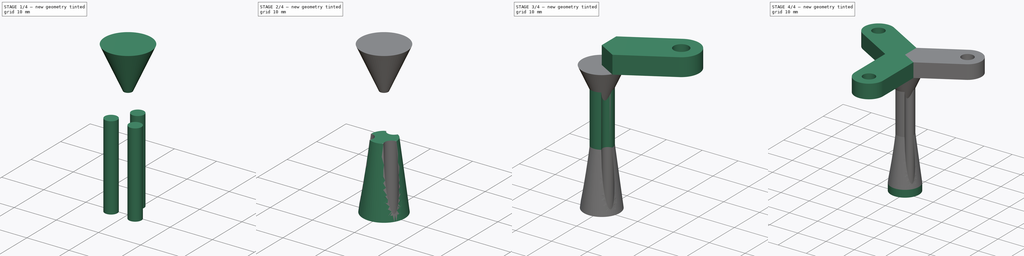
[diagram: build sequence overview — one tinted view per stage of 4, left to right]
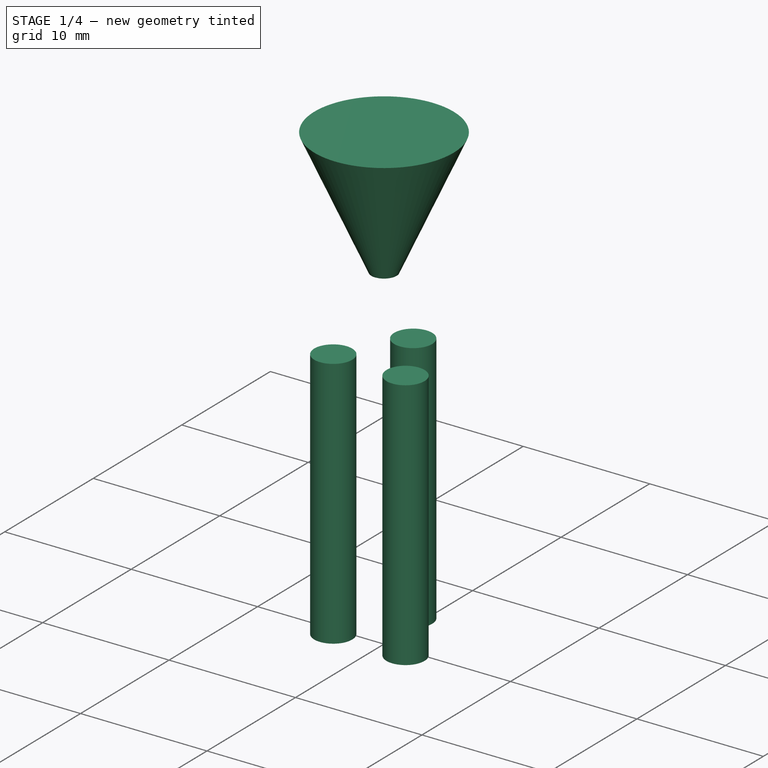
[diagram: stage 1 of 4 — iso view after this stage's code; geometry added in this stage tinted green]
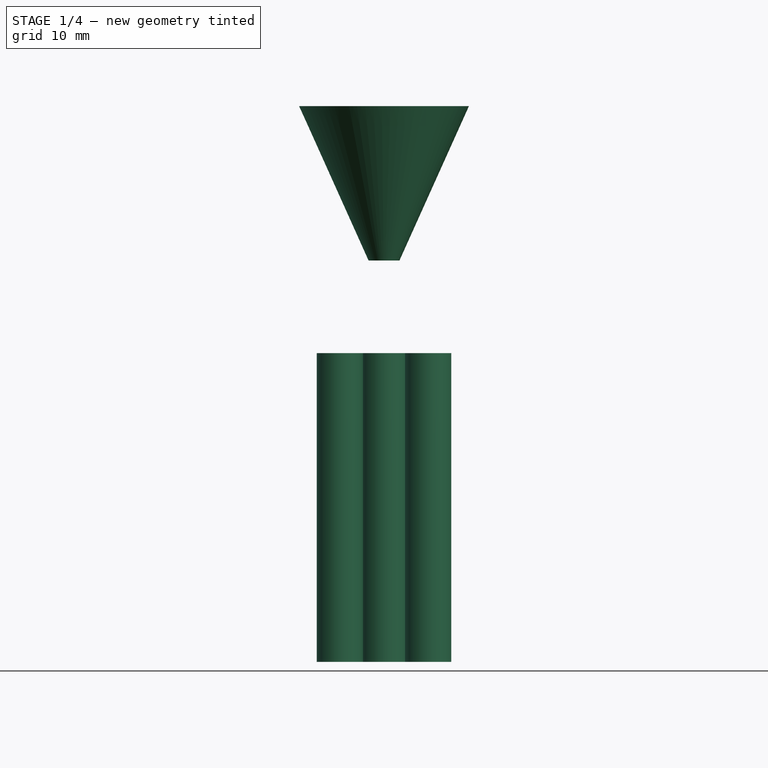
[diagram: stage 1 of 4 — front view after this stage's code; geometry added in this stage tinted green]
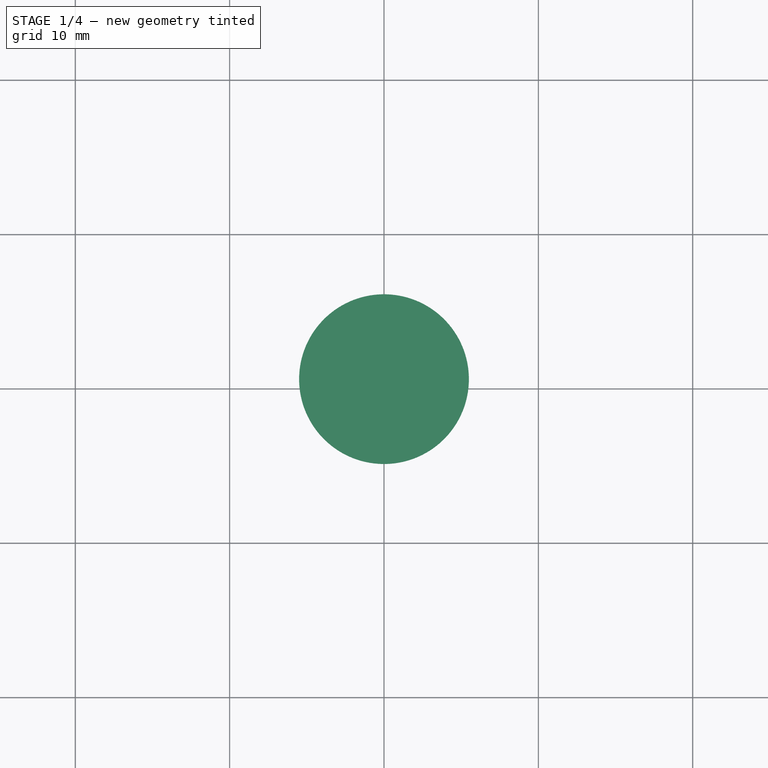
[diagram: stage 1 of 4 — top view after this stage's code; geometry added in this stage tinted green]
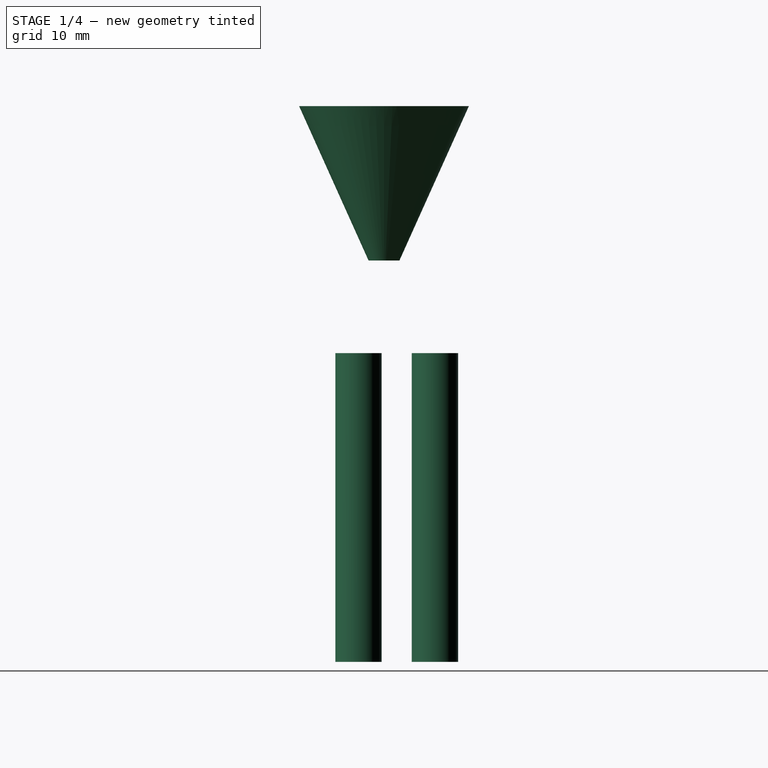
[diagram: stage 1 of 4 — right view after this stage's code; geometry added in this stage tinted green]
FCSTD DOCUMENT  (FreeCAD 0.20R29177 +426 (Git))
Label: CF2.1_BL_motor_mount_fixture
License: All rights reserved
LicenseURL: http://en.wikipedia.org/wiki/All_rights_reserved
objects: Sketcher::SketchObject×3, PartDesign::Pad×3, Part::Cone×2, PartDesign::Body×2, Part::Extrusion×1, Part::Cut×1, PartDesign::FeatureBase×1, PartDesign::PolarPattern×1
note: 17 computed .brp shape members not serialized (recipe doc carries the construction recipe); baked Part::Feature solids carry a one-line shape summary decoded from their .brp

FEATURE [Sketcher::SketchObject] Sketch005
  FullyConstrained = true
  MapMode = 5
  Placement = pos=(0,0,1) rot=(0,0,1;0rad)
  sketch-geometry (6):
    g0: Circle CenterX=0 CenterY=3.3 CenterZ=0 NormalX=0 NormalY=0 NormalZ=1 AngleXU=0 Radius=1.5
    g1: Circle CenterX=2.85788 CenterY=-1.65 CenterZ=0 NormalX=0 NormalY=0 NormalZ=1 AngleXU=0 Radius=1.5
    g2: Circle CenterX=-2.85788 CenterY=-1.65 CenterZ=0 NormalX=0 NormalY=0 NormalZ=1 AngleXU=0 Radius=1.5
    g3: Circle CenterX=0 CenterY=0 CenterZ=0 NormalX=0 NormalY=0 NormalZ=1 AngleXU=0 Radius=3.3
    g4: LineSegment StartX=0 StartY=0 StartZ=0 EndX=2.85788 EndY=-1.65 EndZ=0
    g5: LineSegment StartX=0 StartY=0 StartZ=0 EndX=-2.85788 EndY=-1.65 EndZ=0
  constraints (15):
    c: PointOnObject(g0,g-2)
    c: Coincident(g3,g-1)
    c: Coincident(g4,g3)
    c: Coincident(g4,g1)
    c: Coincident(g5,g3)
    c: Coincident(g5,g2)
    c: Radius(g3) = 3.3
    c: PointOnObject(g1,g3)
    c: PointOnObject(g2,g3)
    c: Radius(g1) = 1.5
    c: Radius(g2) = 1.5
    c: Radius(g0) = 1.5
    c: PointOnObject(g0,g3)
    c: Angle(g4) = -0.523599
    c: Angle(g5) = -2.61799
FEATURE [Part::Extrusion] Extrude
  Base = -> Sketch005
  Dir = (0,0,1)
  DirMode = 2
  FaceMakerClass = Part::FaceMakerBullseye
  LengthFwd = 20
  LengthRev = 0
  Solid = true
  Symmetric = false
FEATURE [PartDesign::Body] Body
  Group = -> [Sketch,Pad,Sketch005]
  Origin = -> Origin
  Tip = -> Pad
FEATURE [PartDesign::Body] Body001
  BaseFeature = -> Cut
  Group = -> [BaseFeature,Pad001,Sketch006,Pad002,PolarPattern]
  Origin = -> Origin001
  Tip = -> PolarPattern
FEATURE [Part::Cone] Cone001
  Angle = 360
  AttacherType = Attacher::AttachEngine3D
  Height = 10
  Placement = pos=(0,0,27) rot=(0,0,1;0rad)
  Radius1 = 1
  Radius2 = 5.5
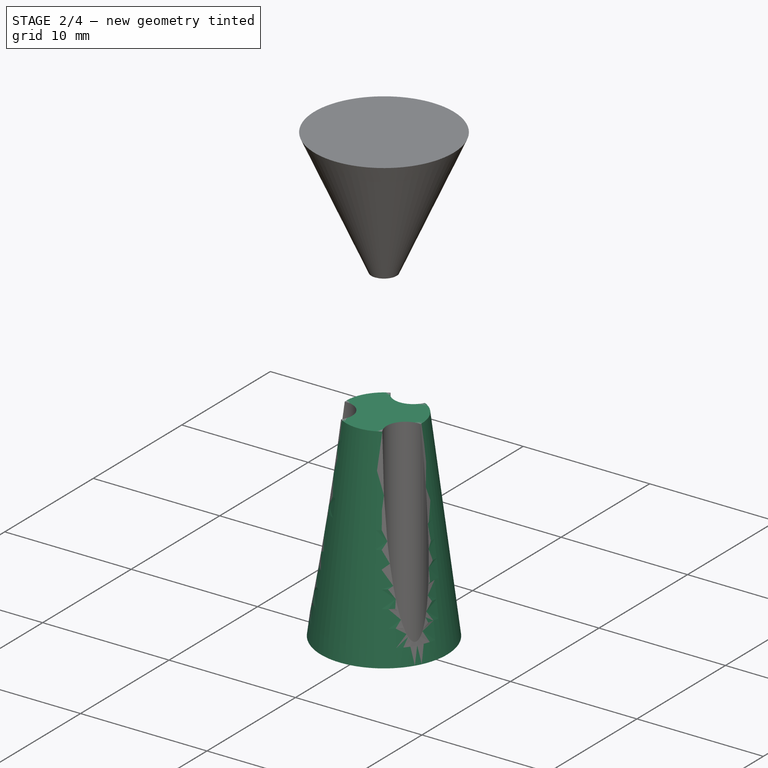
[diagram: stage 2 of 4 — iso view after this stage's code; geometry added in this stage tinted green]
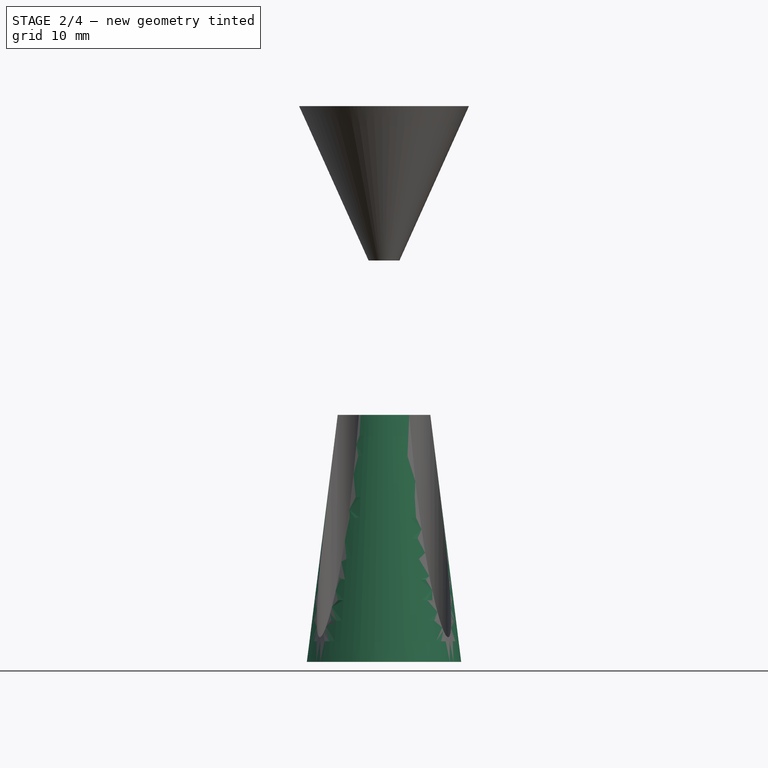
[diagram: stage 2 of 4 — front view after this stage's code; geometry added in this stage tinted green]
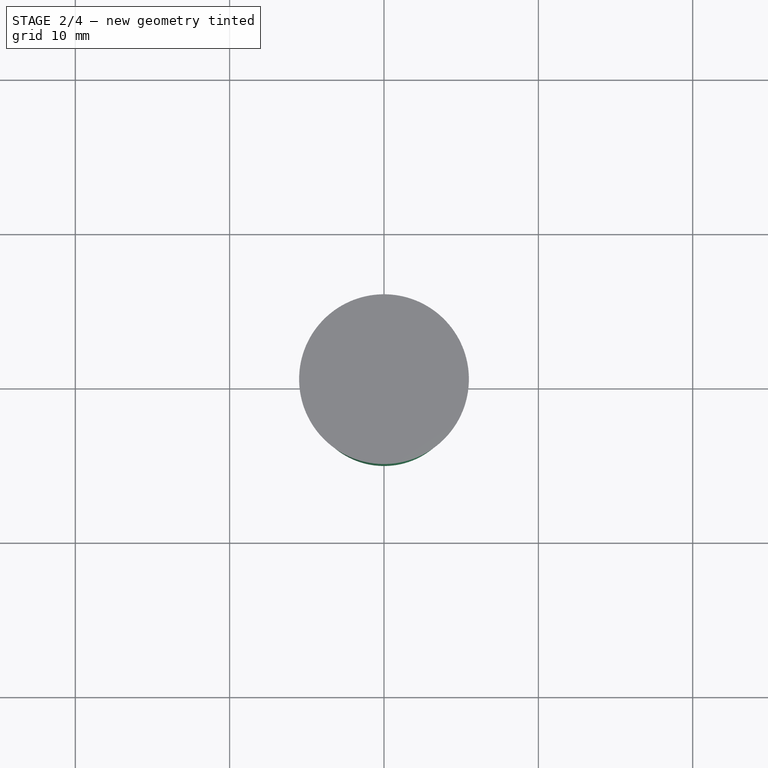
[diagram: stage 2 of 4 — top view after this stage's code; geometry added in this stage tinted green]
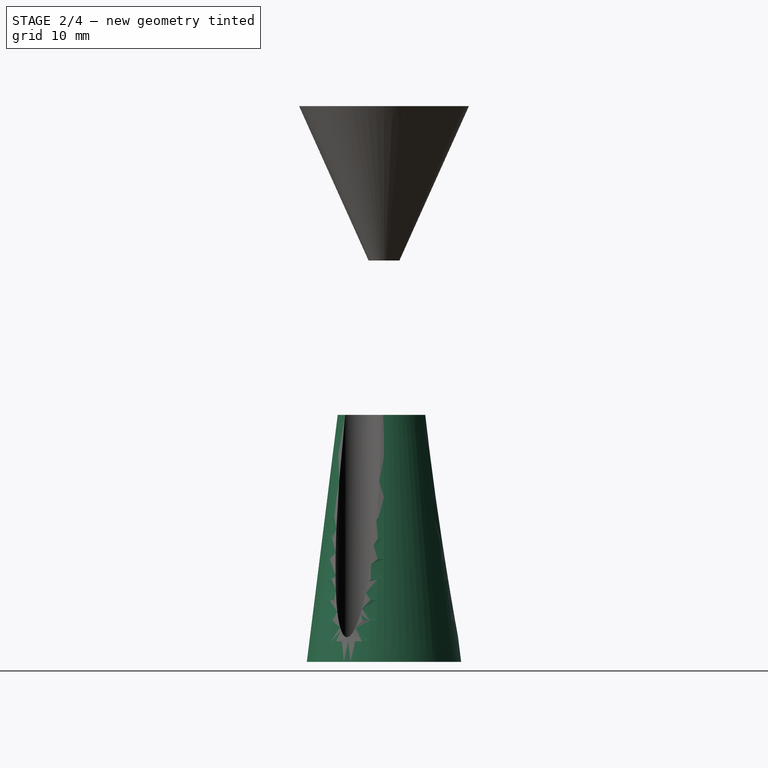
[diagram: stage 2 of 4 — right view after this stage's code; geometry added in this stage tinted green]
FEATURE [Part::Cone] Cone
  Angle = 360
  AttacherType = Attacher::AttachEngine3D
  Height = 16
  Placement = pos=(0,0,1) rot=(0,0,1;0rad)
  Radius1 = 5
  Radius2 = 3
FEATURE [Part::Cut] Cut
  Base = -> Cone
  Tool = -> Extrude
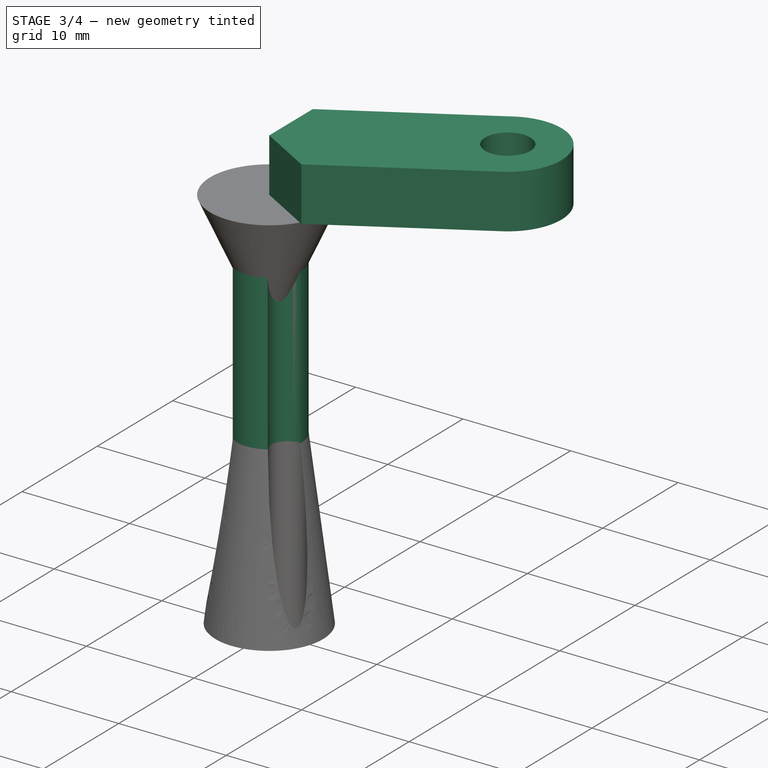
[diagram: stage 3 of 4 — iso view after this stage's code; geometry added in this stage tinted green]
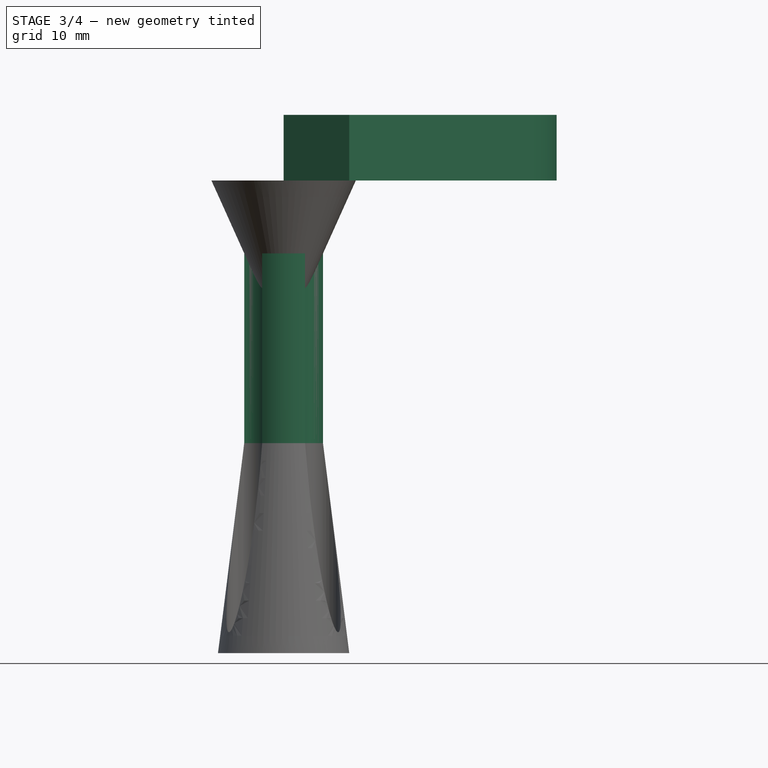
[diagram: stage 3 of 4 — front view after this stage's code; geometry added in this stage tinted green]
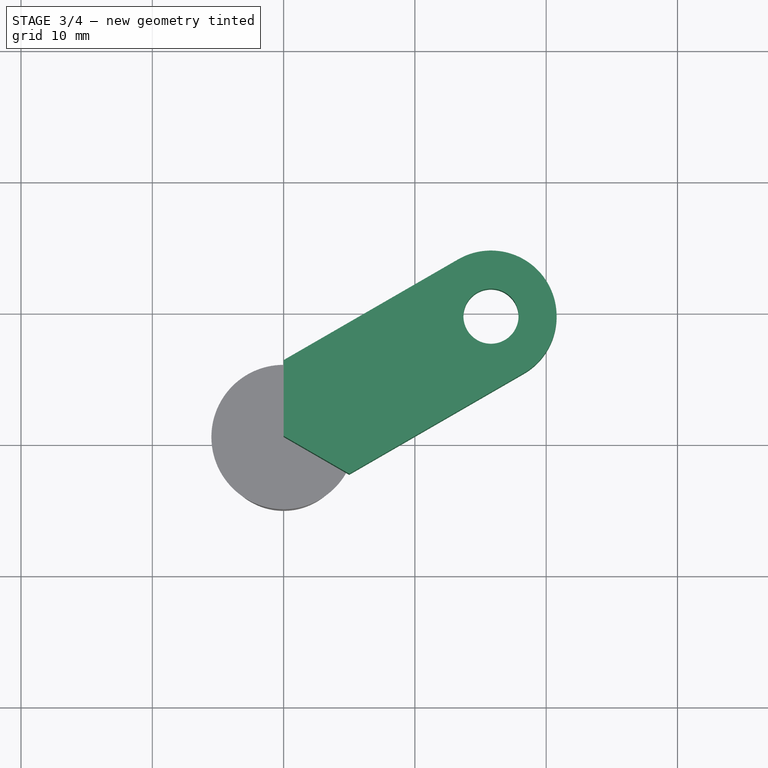
[diagram: stage 3 of 4 — top view after this stage's code; geometry added in this stage tinted green]
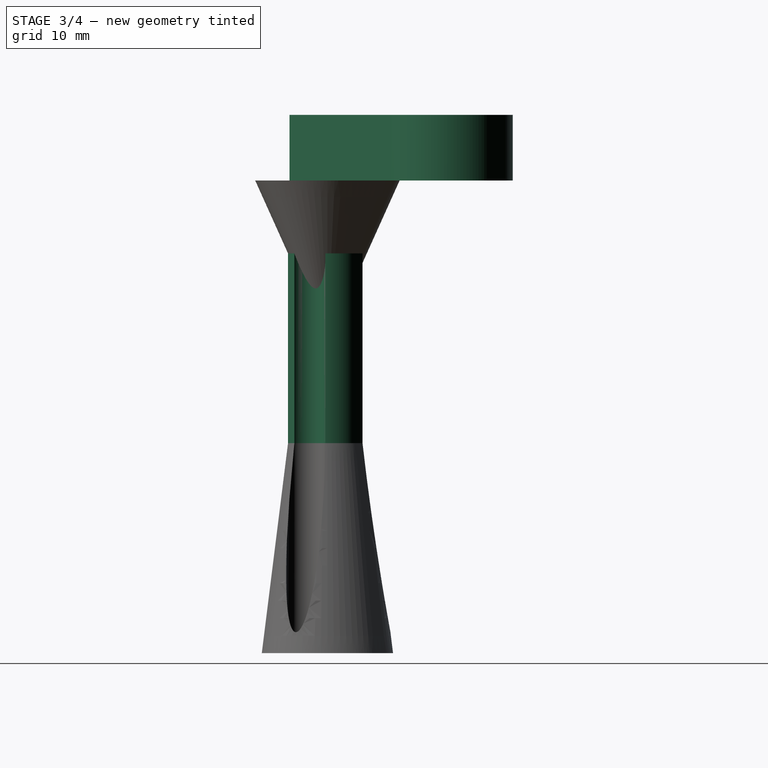
[diagram: stage 3 of 4 — right view after this stage's code; geometry added in this stage tinted green]
FEATURE [PartDesign::FeatureBase] BaseFeature
  BaseFeature = -> Cut
FEATURE [PartDesign::Pad] Pad001
  BaseFeature = -> BaseFeature
  Direction = (0,0,1)
  Length = 20
  Length2 = 10
  Profile = -> BaseFeature [Face3]
  Type = 0
FEATURE [Sketcher::SketchObject] Sketch006
  FullyConstrained = false
  MapMode = 5
  Placement = pos=(0,0,37) rot=(0,0,1;0rad)
  Support = -> [Pad001]
  sketch-geometry (8):
    g0: LineSegment StartX=0 StartY=0 StartZ=0 EndX=15.795 EndY=9.11925 EndZ=0
    g1: ArcOfCircle CenterX=15.795 CenterY=9.11925 CenterZ=0 NormalX=0 NormalY=0 NormalZ=1 AngleXU=0 Radius=5 StartAngle=5.23599 EndAngle=8.37758
    g2: LineSegment StartX=13.295 StartY=13.4494 StartZ=0 EndX=0 EndY=5.7735 EndZ=0
    g3: LineSegment StartX=18.295 StartY=4.78913 StartZ=0 EndX=5 EndY=-2.88675 EndZ=0
    g4: Circle CenterX=15.795 CenterY=9.11925 CenterZ=0 NormalX=0 NormalY=0 NormalZ=1 AngleXU=0 Radius=2.1
    g5: LineSegment StartX=0 StartY=0 StartZ=0 EndX=8.40718 EndY=-4.85389 EndZ=0
    g6: LineSegment StartX=0 StartY=5.7735 StartZ=0 EndX=0 EndY=0 EndZ=0
    g7: LineSegment StartX=5 StartY=-2.88675 StartZ=0 EndX=0 EndY=0 EndZ=0
  constraints (18):
    c: Coincident(g0,g-1)
    c: Angle(g0) = 0.523599
    c: Coincident(g1,g0)
    c: PointOnObject(g2,g-2)
    c: Parallel(g2,g3)
    c: Parallel(g3,g0)
    c: Tangent(g2,g1) = -1.5708
    c: Tangent(g3,g1) = 1.5708
    c: Coincident(g4,g1)
    c: Radius(g4) = 2.1
    c: Coincident(g5,g0)
    c: Angle(g5) = -0.523599
    c: PointOnObject(g3,g5)
    c: Radius(g1) = 5
    c: Coincident(g6,g2)
    c: Coincident(g6,g0)
    c: Coincident(g7,g3)
    c: Coincident(g7,g6)
FEATURE [PartDesign::Pad] Pad002
  BaseFeature = -> Pad001
  Direction = (0,0,1)
  Length = 5
  Length2 = 10
  Profile = -> Sketch006
  ReferenceAxis = -> Sketch006 [N_Axis]
  Type = 0
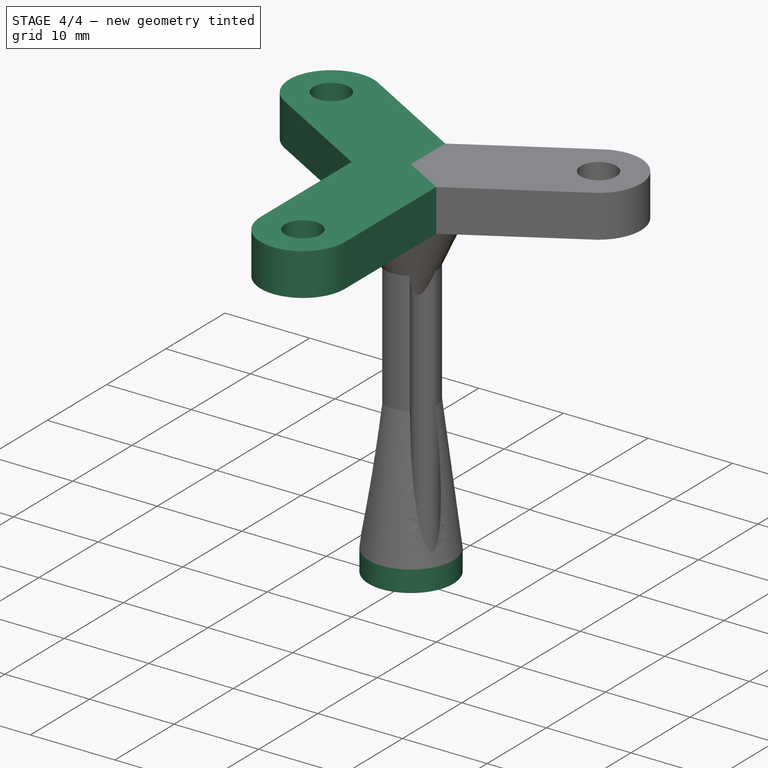
[diagram: stage 4 of 4 — iso view after this stage's code; geometry added in this stage tinted green]
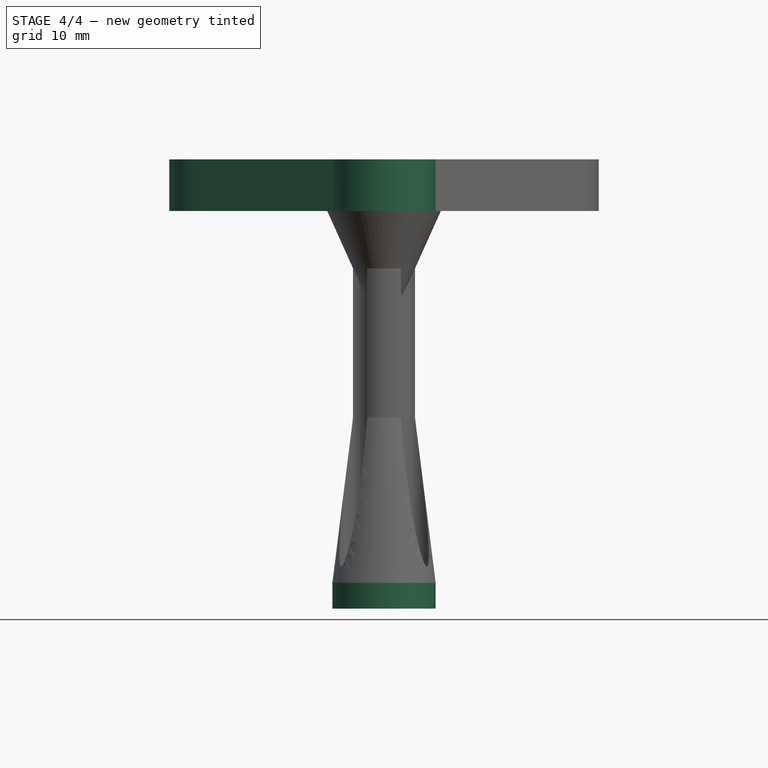
[diagram: stage 4 of 4 — front view after this stage's code; geometry added in this stage tinted green]
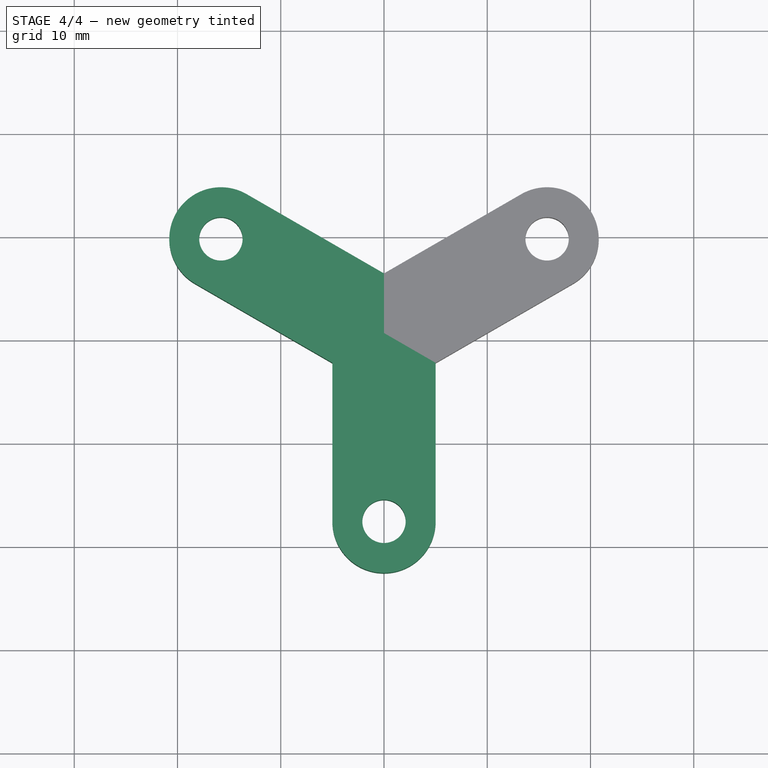
[diagram: stage 4 of 4 — top view after this stage's code; geometry added in this stage tinted green]
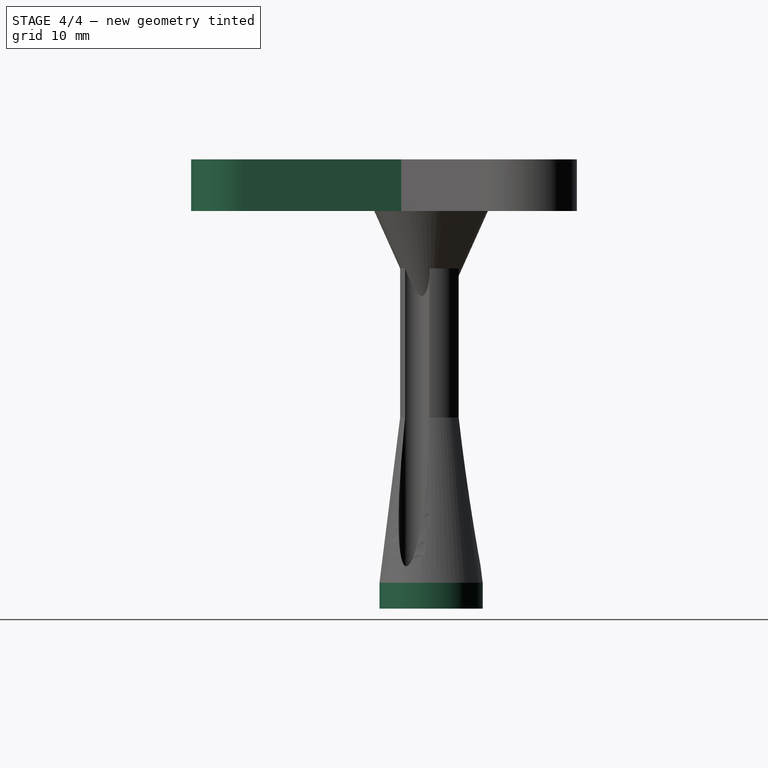
[diagram: stage 4 of 4 — right view after this stage's code; geometry added in this stage tinted green]
FEATURE [PartDesign::PolarPattern] PolarPattern
  Angle = 360
  Axis = -> Sketch006 [N_Axis]
  BaseFeature = -> Pad002
  Occurrences = 3
  Originals = -> [Pad002]
FEATURE [Sketcher::SketchObject] Sketch
  AttachmentOffset = pos=(0,0,0) rot=(0,0,1;3.14159rad)
  FullyConstrained = true
  MapMode = 5
  Placement = pos=(0,0,1) rot=(0,-1,0;3.14159rad)
  Support = -> [PolarPattern]
  sketch-geometry (8):
    g0: Circle CenterX=0 CenterY=0 CenterZ=0 NormalX=0 NormalY=0 NormalZ=1 AngleXU=0 Radius=5
    g1: Circle CenterX=0 CenterY=3.3 CenterZ=0 NormalX=0 NormalY=0 NormalZ=1 AngleXU=0 Radius=0.85
    g2: Circle CenterX=2.85788 CenterY=-1.65 CenterZ=0 NormalX=0 NormalY=0 NormalZ=1 AngleXU=0 Radius=0.85
    g3: Circle CenterX=-2.85788 CenterY=-1.65 CenterZ=0 NormalX=0 NormalY=0 NormalZ=1 AngleXU=0 Radius=0.85
    g4: Circle CenterX=0 CenterY=0 CenterZ=0 NormalX=0 NormalY=0 NormalZ=1 AngleXU=0 Radius=3.3
    g5: LineSegment StartX=0 StartY=0 StartZ=0 EndX=4.33013 EndY=-2.5 EndZ=0
    g6: LineSegment StartX=0 StartY=0 StartZ=0 EndX=-4.33013 EndY=-2.5 EndZ=0
    g7: Circle CenterX=0 CenterY=0 CenterZ=0 NormalX=0 NormalY=0 NormalZ=1 AngleXU=0 Radius=2
  constraints (21):
    c: Coincident(g0,g-1)
    c: Radius(g0) = 5
    c: PointOnObject(g1,g-2)
    c: Diameter(g1) = 1.7
    c: Diameter(g2) = 1.7
    c: Diameter(g3) = 1.7
    c: Coincident(g4,g0)
    c: Radius(g4) = 3.3
    c: Coincident(g5,g0)
    c: PointOnObject(g5,g0)
    c: Coincident(g6,g0)
    c: PointOnObject(g6,g0)
    c: Angle(g5) = -0.523599
    c: Angle(g6) = -2.61799
    c: PointOnObject(g2,g5)
    c: PointOnObject(g2,g4)
    c: PointOnObject(g3,g6)
    c: PointOnObject(g3,g4)
    c: PointOnObject(g1,g4)
    c: Coincident(g7,g0)
    c: Radius(g7) = 2
FEATURE [PartDesign::Pad] Pad
  Direction = (0,0,-1)
  Length = 2.5
  Length2 = 10
  Profile = -> Sketch
  ReferenceAxis = -> Sketch [N_Axis]
  Type = 0
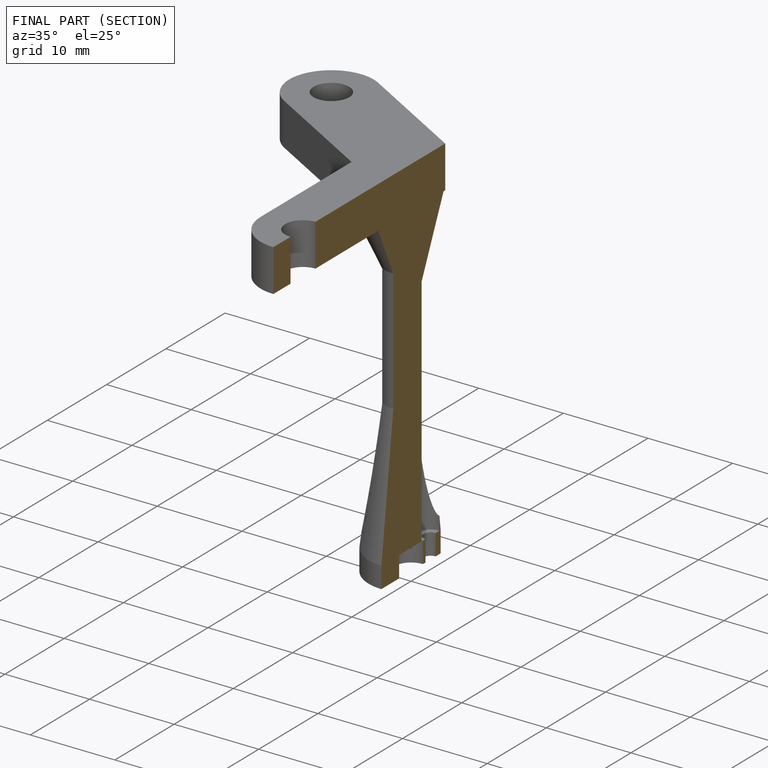
[diagram: finished part — half-section view (interior)]
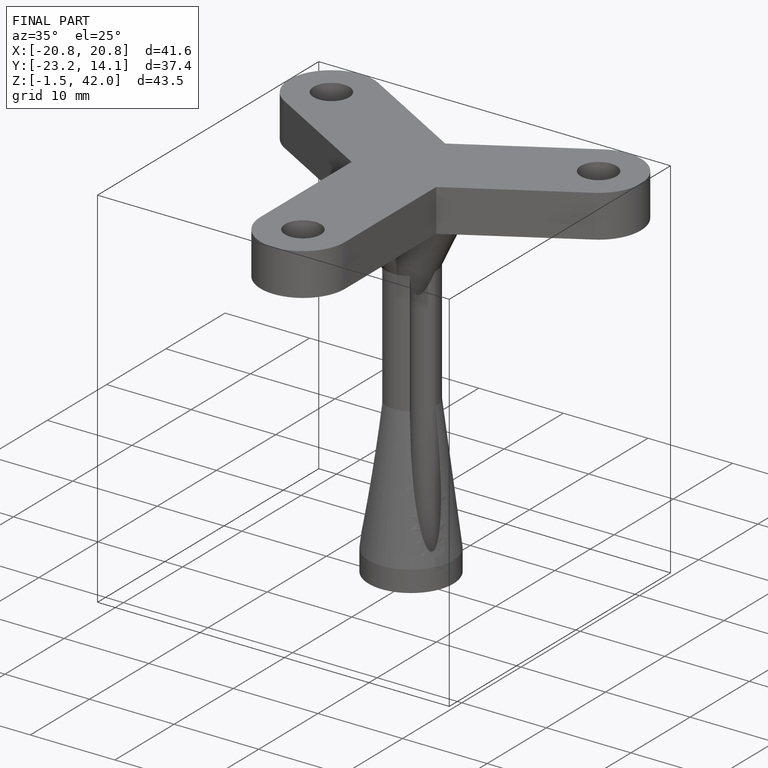
[diagram: finished part — iso view with bounding-box wireframe]
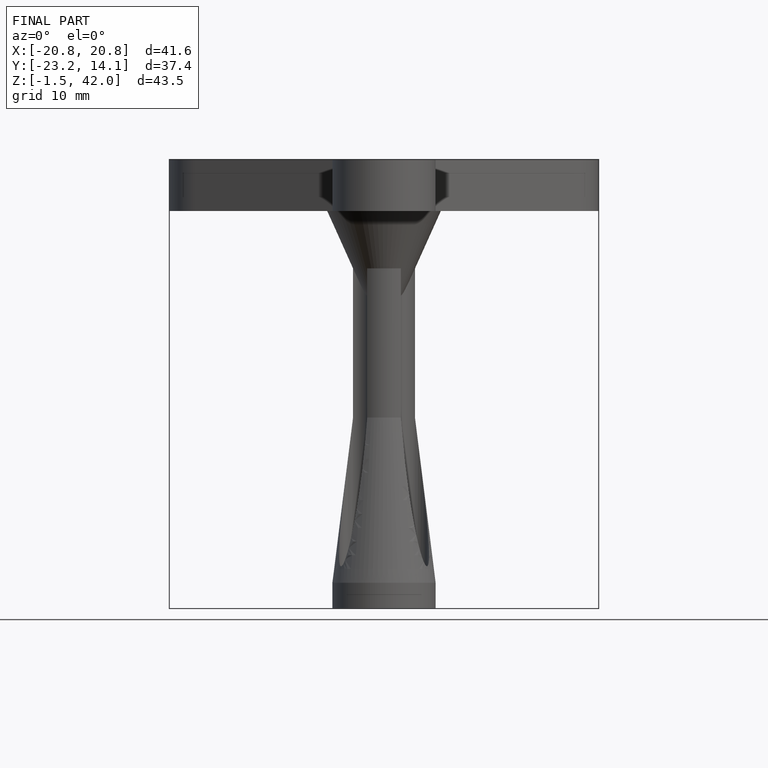
[diagram: finished part — front view with bounding-box wireframe]
